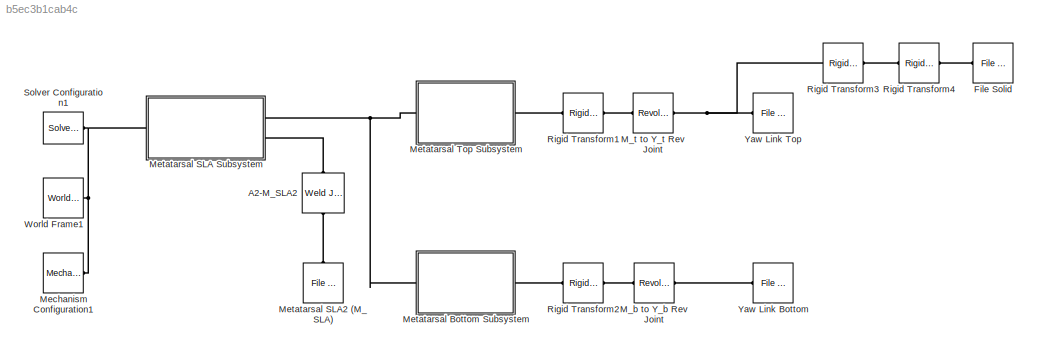
MODEL slx_b5ec3b1cab4c
KIND model
CONFIG AbsTol = 1e-3
CONFIG EnableMultiTasking = on
CONFIG FixedStep = auto
CONFIG MaxStep = auto
CONFIG MinStep = auto
CONFIG RelTol = 1e-3
CONFIG SampleTimeConstraint = Unconstrained
CONFIG SolverName = VariableStepAuto
CONFIG StartTime = 0.0
CONFIG StopTime = 10.0
BLOCK [Reference] A2-M_SLA2  REF=sm_lib/Joints/Weld Joint
  NameLocation = left
  Ports = [0, 0, 0, 0, 0, 1, 1]
  SourceBlock = sm_lib/Joints/Weld Joint
  SourceProductBaseCode = MS
  SourceType = Weld Joint
BLOCK [Reference] File Solid  REF=sm_lib/Body Elements/File Solid
  Ports = [0, 0, 0, 0, 0, 1]
  SourceBlock = sm_lib/Body Elements/File Solid
  SourceProductBaseCode = MS
  SourceType = File Solid
BLOCK [Reference] M_b to Y_b Rev Joint  REF=sm_lib/Joints/Revolute Joint
  Ports = [0, 0, 0, 0, 0, 1, 1]
  SourceBlock = sm_lib/Joints/Revolute Joint
  SourceProductBaseCode = MS
  SourceType = Revolute Joint
BLOCK [Reference] M_t to Y_t Rev Joint  REF=sm_lib/Joints/Revolute Joint
  Ports = [0, 0, 0, 0, 0, 1, 1]
  SourceBlock = sm_lib/Joints/Revolute Joint
  SourceProductBaseCode = MS
  SourceType = Revolute Joint
BLOCK [Reference] Mechanism Configuration1  REF=sm_lib/Utilities/Mechanism
Configuration
  Ports = [0, 0, 0, 0, 0, 0, 1]
  SourceBlock = sm_lib/Utilities/Mechanism\nConfiguration
  SourceProductBaseCode = MS
  SourceType = Mechanism\nConfiguration
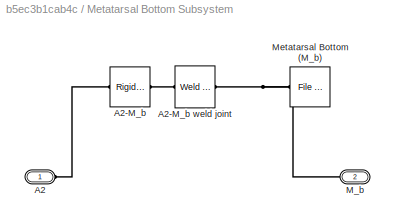
BLOCK [SubSystem] Metatarsal Bottom Subsystem
  Ports = [0, 0, 0, 0, 0, 1, 1]
  RequestExecContextInheritance = off
BLOCK [PMIOPort] Metatarsal Bottom Subsystem/A2
  Side = Left
BLOCK [Reference] Metatarsal Bottom Subsystem/A2-M_b  REF=sm_lib/Frames and
Transforms/Rigid
Transform
  Ports = [0, 0, 0, 0, 0, 1, 1]
  SourceBlock = sm_lib/Frames and\nTransforms/Rigid\nTransform
  SourceProductBaseCode = MS
  SourceType = Rigid\nTransform
BLOCK [Reference] Metatarsal Bottom Subsystem/A2-M_b weld joint  REF=sm_lib/Joints/Weld Joint
  Ports = [0, 0, 0, 0, 0, 1, 1]
  SourceBlock = sm_lib/Joints/Weld Joint
  SourceProductBaseCode = MS
  SourceType = Weld Joint
BLOCK [PMIOPort] Metatarsal Bottom Subsystem/M_b
  Port = 2
  Side = Right
BLOCK [Reference] Metatarsal Bottom Subsystem/Metatarsal Bottom (M_b)  REF=sm_lib/Body Elements/File Solid
  Ports = [0, 0, 0, 0, 0, 1]
  SourceBlock = sm_lib/Body Elements/File Solid
  SourceProductBaseCode = MS
  SourceType = File Solid
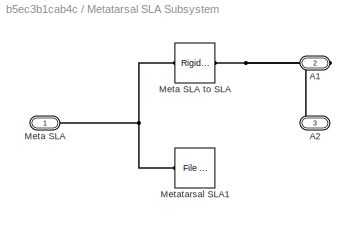
BLOCK [SubSystem] Metatarsal SLA Subsystem
  Ports = [0, 0, 0, 0, 0, 1, 2]
  RequestExecContextInheritance = off
BLOCK [PMIOPort] Metatarsal SLA Subsystem/A1
  Port = 2
  Side = Right
BLOCK [PMIOPort] Metatarsal SLA Subsystem/A2
  Port = 3
  Side = Right
BLOCK [PMIOPort] Metatarsal SLA Subsystem/Meta SLA
  Side = Left
BLOCK [Reference] Metatarsal SLA Subsystem/Meta SLA to SLA  REF=sm_lib/Frames and
Transforms/Rigid
Transform
  Ports = [0, 0, 0, 0, 0, 1, 1]
  SourceBlock = sm_lib/Frames and\nTransforms/Rigid\nTransform
  SourceProductBaseCode = MS
  SourceType = Rigid\nTransform
BLOCK [Reference] Metatarsal SLA Subsystem/Metatarsal SLA1  REF=sm_lib/Body Elements/File Solid
  Ports = [0, 0, 0, 0, 0, 1]
  SourceBlock = sm_lib/Body Elements/File Solid
  SourceProductBaseCode = MS
  SourceType = File Solid
BLOCK [Reference] Metatarsal SLA2 (M_SLA)  REF=sm_lib/Body Elements/File Solid
  NameLocation = left
  Ports = [0, 0, 0, 0, 0, 1]
  SourceBlock = sm_lib/Body Elements/File Solid
  SourceProductBaseCode = MS
  SourceType = File Solid
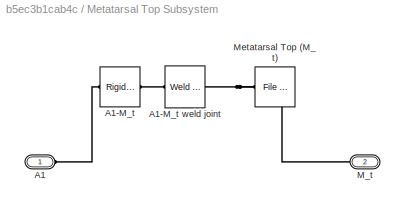
BLOCK [SubSystem] Metatarsal Top Subsystem
  Ports = [0, 0, 0, 0, 0, 1, 1]
  RequestExecContextInheritance = off
BLOCK [PMIOPort] Metatarsal Top Subsystem/A1
  Side = Left
BLOCK [Reference] Metatarsal Top Subsystem/A1-M_t  REF=sm_lib/Frames and
Transforms/Rigid
Transform
  Ports = [0, 0, 0, 0, 0, 1, 1]
  SourceBlock = sm_lib/Frames and\nTransforms/Rigid\nTransform
  SourceProductBaseCode = MS
  SourceType = Rigid\nTransform
BLOCK [Reference] Metatarsal Top Subsystem/A1-M_t weld joint  REF=sm_lib/Joints/Weld Joint
  Ports = [0, 0, 0, 0, 0, 1, 1]
  SourceBlock = sm_lib/Joints/Weld Joint
  SourceProductBaseCode = MS
  SourceType = Weld Joint
BLOCK [PMIOPort] Metatarsal Top Subsystem/M_t
  Port = 2
  Side = Right
BLOCK [Reference] Metatarsal Top Subsystem/Metatarsal Top (M_t)  REF=sm_lib/Body Elements/File Solid
  Ports = [0, 0, 0, 0, 0, 1]
  SourceBlock = sm_lib/Body Elements/File Solid
  SourceProductBaseCode = MS
  SourceType = File Solid
BLOCK [Reference] Rigid Transform1  REF=sm_lib/Frames and
Transforms/Rigid
Transform
  Ports = [0, 0, 0, 0, 0, 1, 1]
  SourceBlock = sm_lib/Frames and\nTransforms/Rigid\nTransform
  SourceProductBaseCode = MS
  SourceType = Rigid\nTransform
BLOCK [Reference] Rigid Transform2  REF=sm_lib/Frames and
Transforms/Rigid
Transform
  Ports = [0, 0, 0, 0, 0, 1, 1]
  SourceBlock = sm_lib/Frames and\nTransforms/Rigid\nTransform
  SourceProductBaseCode = MS
  SourceType = Rigid\nTransform
BLOCK [Reference] Rigid Transform3  REF=sm_lib/Frames and
Transforms/Rigid
Transform
  Ports = [0, 0, 0, 0, 0, 1, 1]
  SourceBlock = sm_lib/Frames and\nTransforms/Rigid\nTransform
  SourceProductBaseCode = MS
  SourceType = Rigid\nTransform
BLOCK [Reference] Rigid Transform4  REF=sm_lib/Frames and
Transforms/Rigid
Transform
  Ports = [0, 0, 0, 0, 0, 1, 1]
  SourceBlock = sm_lib/Frames and\nTransforms/Rigid\nTransform
  SourceProductBaseCode = MS
  SourceType = Rigid\nTransform
BLOCK [Reference] Solver Configuration1  REF=nesl_utility/Solver
Configuration
  Ports = [0, 0, 0, 0, 0, 0, 1]
  SourceBlock = nesl_utility/Solver\nConfiguration
  SourceProductBaseCode = PW,SS
  SourceType = Solver\nConfiguration
BLOCK [Reference] World Frame1  REF=sm_lib/Frames and
Transforms/World Frame
  Ports = [0, 0, 0, 0, 0, 0, 1]
  SourceBlock = sm_lib/Frames and\nTransforms/World Frame
  SourceProductBaseCode = MS
  SourceType = World Frame
BLOCK [Reference] Yaw Link Bottom  REF=sm_lib/Body Elements/File Solid
  Ports = [0, 0, 0, 0, 0, 1]
  SourceBlock = sm_lib/Body Elements/File Solid
  SourceProductBaseCode = MS
  SourceType = File Solid
BLOCK [Reference] Yaw Link Top  REF=sm_lib/Body Elements/File Solid
  Ports = [0, 0, 0, 0, 0, 1]
  SourceBlock = sm_lib/Body Elements/File Solid
  SourceProductBaseCode = MS
  SourceType = File Solid
PLINE A2-M_SLA2:LConn1 -- Metatarsal SLA2 (M_SLA):LConn1
PLINE A2-M_SLA2:RConn1 -- Metatarsal SLA Subsystem:RConn2
PLINE File Solid:LConn1 -- Rigid Transform4:RConn1
PLINE M_b to Y_b Rev Joint:LConn1 -- Rigid Transform2:RConn1
PLINE M_b to Y_b Rev Joint:RConn1 -- Yaw Link Bottom:LConn1
PLINE M_t to Y_t Rev Joint:LConn1 -- Rigid Transform1:RConn1
PNET net1: M_t to Y_t Rev Joint:RConn1 -- Rigid Transform3:LConn1 -- Yaw Link Top:LConn1
PNET net2: Mechanism Configuration1:RConn1 -- Metatarsal SLA Subsystem:LConn1 -- Solver Configuration1:RConn1 -- World Frame1:RConn1
PNET net3: Metatarsal Bottom Subsystem/A2-M_b weld joint:LConn1 -- Metatarsal Bottom Subsystem/M_b:RConn1 -- Metatarsal Bottom Subsystem/Metatarsal Bottom (M_b):LConn1
PLINE Metatarsal Bottom Subsystem/A2-M_b weld joint:RConn1 -- Metatarsal Bottom Subsystem/A2-M_b:RConn1
PLINE Metatarsal Bottom Subsystem/A2-M_b:LConn1 -- Metatarsal Bottom Subsystem/A2:RConn1
PNET net4: Metatarsal Bottom Subsystem:LConn1 -- Metatarsal SLA Subsystem:RConn1 -- Metatarsal Top Subsystem:LConn1
PLINE Metatarsal Bottom Subsystem:RConn1 -- Rigid Transform2:LConn1
PNET net5: Metatarsal SLA Subsystem/A1:RConn1 -- Metatarsal SLA Subsystem/A2:RConn1 -- Metatarsal SLA Subsystem/Meta SLA to SLA:RConn1
PNET net6: Metatarsal SLA Subsystem/Meta SLA to SLA:LConn1 -- Metatarsal SLA Subsystem/Meta SLA:RConn1 -- Metatarsal SLA Subsystem/Metatarsal SLA1:LConn1
PNET net7: Metatarsal Top Subsystem/A1-M_t weld joint:LConn1 -- Metatarsal Top Subsystem/M_t:RConn1 -- Metatarsal Top Subsystem/Metatarsal Top (M_t):LConn1
PLINE Metatarsal Top Subsystem/A1-M_t weld joint:RConn1 -- Metatarsal Top Subsystem/A1-M_t:RConn1
PLINE Metatarsal Top Subsystem/A1-M_t:LConn1 -- Metatarsal Top Subsystem/A1:RConn1
PLINE Metatarsal Top Subsystem:RConn1 -- Rigid Transform1:LConn1
PLINE Rigid Transform3:RConn1 -- Rigid Transform4:LConn1
note: PNET lines group multi-terminal physical nets as a canonical sorted terminal list (undirected conserving connections); 2-terminal nets keep the pairwise PLINE form
